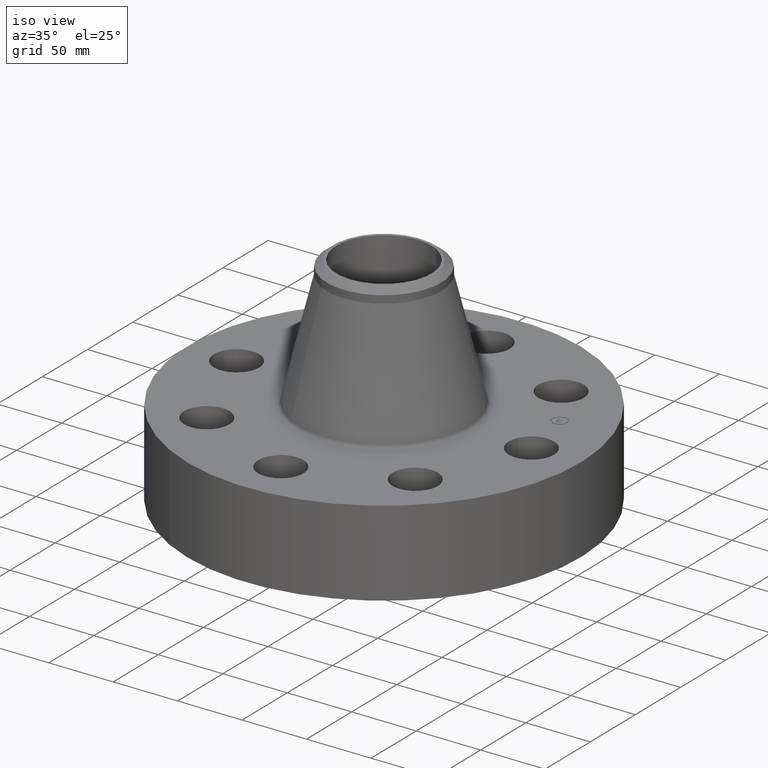
[diagram: clean part render]
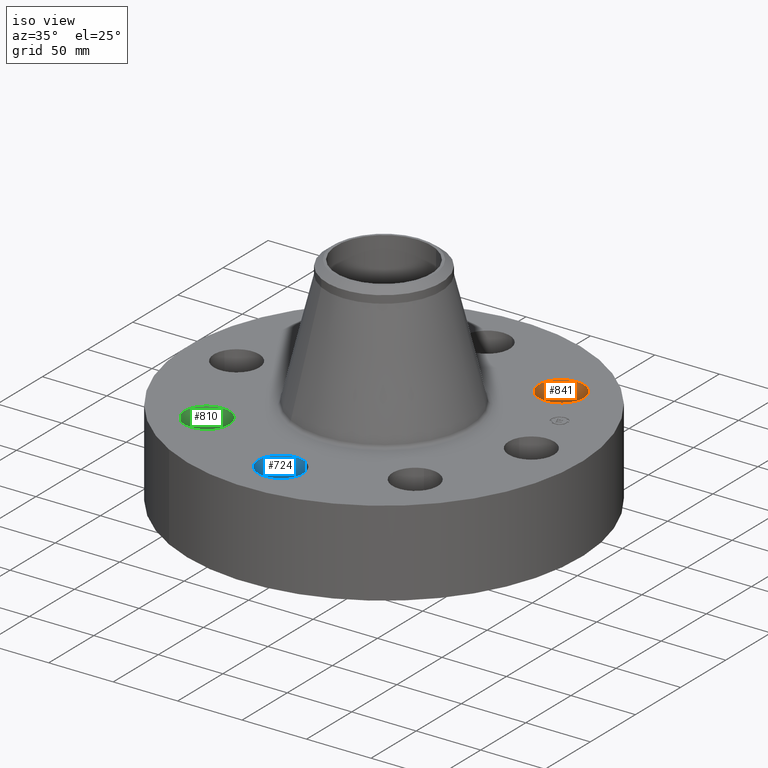
[diagram: same view with three faces highlighted in distinct colors, each labeled with its STEP entity id]
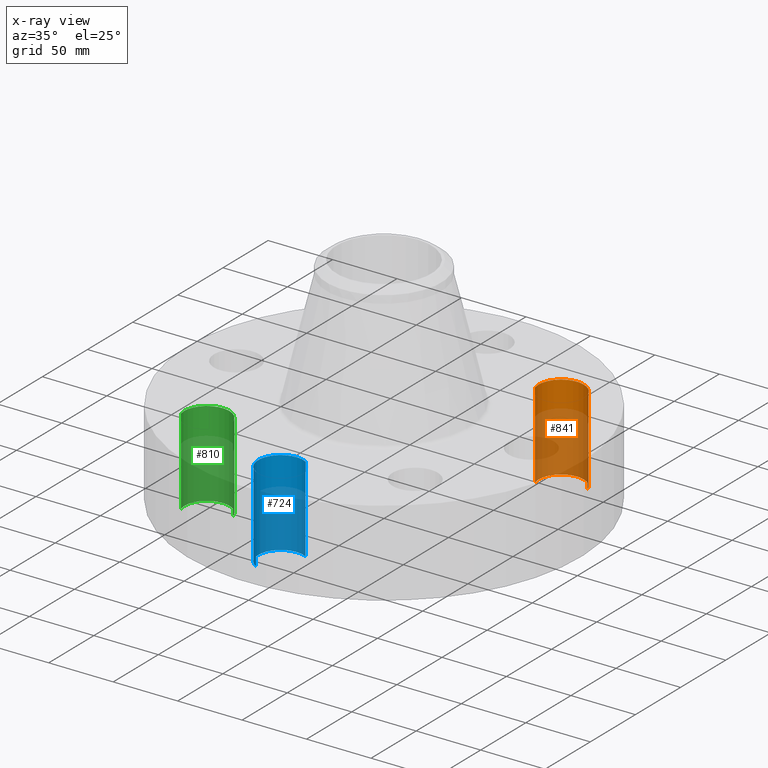
[diagram: x-ray of the same camera — body ghosted, the three highlighted faces saturated]
A machine part, iso view with three faces highlighted in distinct colors.
The next image is the same camera in x-ray (body ghosted, the three faces saturated) — at least one of them is partly hidden behind the body in this view.
Their STEP definitions:

[orange] entity #841 — the highlighted cylindrical surface (edge-blend (fillet) strip) has radius 17.526 mm, axis along (0, 0, -1).
#622=AXIS2_PLACEMENT_3D('Circle Axis2P3D',#620,#621,$) ;
#814=AXIS2_PLACEMENT_3D('Cylinder Axis2P3D',#811,#812,#813) ;
#832=AXIS2_PLACEMENT_3D('Circle Axis2P3D',#830,#831,$) ;
#620=CARTESIAN_POINT('Axis2P3D Location',(3.18198051535,3.18198051535,0.)) ;
#624=CARTESIAN_POINT('Vertex',(2.51989127066,2.98771823886,0.)) ;
#626=CARTESIAN_POINT('Vertex',(3.84406976004,3.37624279184,0.)) ;
#811=CARTESIAN_POINT('Axis2P3D Location',(3.18198051535,3.18198051535,2.61606299214)) ;
#816=CARTESIAN_POINT('Line Origine',(2.51989127066,2.98771823886,1.31000000001)) ;
#820=CARTESIAN_POINT('Vertex',(2.51989127066,2.98771823886,2.62000000001)) ;
#823=CARTESIAN_POINT('Line Origine',(3.84406976004,3.37624279184,1.31000000001)) ;
#827=CARTESIAN_POINT('Vertex',(3.84406976004,3.37624279184,2.62000000001)) ;
#830=CARTESIAN_POINT('Axis2P3D Location',(3.18198051535,3.18198051535,2.62000000001)) ;
#621=DIRECTION('Axis2P3D Direction',(0.,0.,-0.0393700787402)) ;
#812=DIRECTION('Axis2P3D Direction',(0.,0.,-0.0393700787402)) ;
#813=DIRECTION('Axis2P3D XDirection',(0.0377775444876,0.0110842335096,0.)) ;
#817=DIRECTION('Vector Direction',(0.,0.,-0.0393700787402)) ;
#824=DIRECTION('Vector Direction',(0.,0.,-0.0393700787402)) ;
#831=DIRECTION('Axis2P3D Direction',(0.,0.,-0.0393700787402)) ;
#818=VECTOR('Line Direction',#817,0.0393700787402) ;
#825=VECTOR('Line Direction',#824,0.0393700787402) ;
#836=ORIENTED_EDGE('',*,*,#822,.F.) ;
#837=ORIENTED_EDGE('',*,*,#628,.T.) ;
#838=ORIENTED_EDGE('',*,*,#829,.T.) ;
#839=ORIENTED_EDGE('',*,*,#834,.F.) ;
#841=ADVANCED_FACE('PartBody',(#840),#815,.F.) ;
#623=CIRCLE('generated circle',#622,0.690000000003) ;
#833=CIRCLE('generated circle',#832,0.690000000003) ;
#815=CYLINDRICAL_SURFACE('generated cylinder',#814,0.690000000003) ;
#628=EDGE_CURVE('',#625,#627,#623,.T.) ;
#822=EDGE_CURVE('',#625,#821,#819,.F.) ;
#829=EDGE_CURVE('',#627,#828,#826,.F.) ;
#834=EDGE_CURVE('',#821,#828,#833,.T.) ;
#835=EDGE_LOOP('',(#836,#837,#838,#839)) ;
#840=FACE_OUTER_BOUND('',#835,.T.) ;
#819=LINE('Line',#816,#818) ;
#826=LINE('Line',#823,#825) ;
#625=VERTEX_POINT('',#624) ;
#627=VERTEX_POINT('',#626) ;
#821=VERTEX_POINT('',#820) ;
#828=VERTEX_POINT('',#827) ;

[blue] entity #724 — the highlighted cylindrical surface (edge-blend (fillet) strip) has radius 17.526 mm, axis along (0, -0, -1).
#541=AXIS2_PLACEMENT_3D('Circle Axis2P3D',#539,#540,$) ;
#685=AXIS2_PLACEMENT_3D('Cylinder Axis2P3D',#682,#683,#684) ;
#715=AXIS2_PLACEMENT_3D('Circle Axis2P3D',#713,#714,$) ;
#534=CARTESIAN_POINT('Vertex',(0.330803621638,-3.89446803231,0.)) ;
#536=CARTESIAN_POINT('Vertex',(-0.330803621638,-5.10553196772,0.)) ;
#539=CARTESIAN_POINT('Axis2P3D Location',(-4.89547160465E-016,-4.50000000002,0.)) ;
#682=CARTESIAN_POINT('Axis2P3D Location',(-2.83936939293E-016,-4.50000000002,2.61606299214)) ;
#687=CARTESIAN_POINT('Line Origine',(0.330803621638,-3.89446803231,1.31000000001)) ;
#691=CARTESIAN_POINT('Vertex',(0.330803621638,-3.89446803231,2.62000000001)) ;
#694=CARTESIAN_POINT('Line Origine',(-0.330803621638,-5.10553196772,1.31000000001)) ;
#698=CARTESIAN_POINT('Vertex',(-0.330803621638,-5.10553196772,2.62000000001)) ;
#713=CARTESIAN_POINT('Axis2P3D Location',(-2.83936939293E-016,-4.50000000002,2.62000000001)) ;
#540=DIRECTION('Axis2P3D Direction',(0.,0.,-0.0393700787402)) ;
#683=DIRECTION('Axis2P3D Direction',(0.,-0.,-0.0393700787402)) ;
#684=DIRECTION('Axis2P3D XDirection',(-0.0188750212049,-0.0345504945626,0.)) ;
#688=DIRECTION('Vector Direction',(0.,0.,-0.0393700787402)) ;
#695=DIRECTION('Vector Direction',(0.,0.,-0.0393700787402)) ;
#714=DIRECTION('Axis2P3D Direction',(0.,-0.,-0.0393700787402)) ;
#689=VECTOR('Line Direction',#688,0.0393700787402) ;
#696=VECTOR('Line Direction',#695,0.0393700787402) ;
#719=ORIENTED_EDGE('',*,*,#700,.F.) ;
#720=ORIENTED_EDGE('',*,*,#543,.T.) ;
#721=ORIENTED_EDGE('',*,*,#693,.T.) ;
#722=ORIENTED_EDGE('',*,*,#717,.F.) ;
#724=ADVANCED_FACE('PartBody',(#723),#686,.F.) ;
#542=CIRCLE('generated circle',#541,0.690000000003) ;
#716=CIRCLE('generated circle',#715,0.690000000003) ;
#686=CYLINDRICAL_SURFACE('generated cylinder',#685,0.690000000003) ;
#543=EDGE_CURVE('',#537,#535,#542,.T.) ;
#693=EDGE_CURVE('',#535,#692,#690,.F.) ;
#700=EDGE_CURVE('',#537,#699,#697,.F.) ;
#717=EDGE_CURVE('',#699,#692,#716,.T.) ;
#718=EDGE_LOOP('',(#719,#720,#721,#722)) ;
#723=FACE_OUTER_BOUND('',#718,.T.) ;
#690=LINE('Line',#687,#689) ;
#697=LINE('Line',#694,#696) ;
#535=VERTEX_POINT('',#534) ;
#537=VERTEX_POINT('',#536) ;
#692=VERTEX_POINT('',#691) ;
#699=VERTEX_POINT('',#698) ;

[green] entity #810 — the highlighted cylindrical surface (edge-blend (fillet) strip) has radius 17.526 mm, axis along (-0, 0, -1).
#559=AXIS2_PLACEMENT_3D('Circle Axis2P3D',#557,#558,$) ;
#771=AXIS2_PLACEMENT_3D('Cylinder Axis2P3D',#768,#769,#770) ;
#801=AXIS2_PLACEMENT_3D('Circle Axis2P3D',#799,#800,$) ;
#552=CARTESIAN_POINT('Vertex',(-2.51989127066,-2.98771823886,0.)) ;
#554=CARTESIAN_POINT('Vertex',(-3.84406976004,-3.37624279184,0.)) ;
#557=CARTESIAN_POINT('Axis2P3D Location',(-3.18198051535,-3.18198051535,0.)) ;
#768=CARTESIAN_POINT('Axis2P3D Location',(-3.18198051535,-3.18198051535,2.61606299214)) ;
#773=CARTESIAN_POINT('Line Origine',(-2.51989127066,-2.98771823886,1.31000000001)) ;
#777=CARTESIAN_POINT('Vertex',(-2.51989127066,-2.98771823886,2.62000000001)) ;
#780=CARTESIAN_POINT('Line Origine',(-3.84406976004,-3.37624279184,1.31000000001)) ;
#784=CARTESIAN_POINT('Vertex',(-3.84406976004,-3.37624279184,2.62000000001)) ;
#799=CARTESIAN_POINT('Axis2P3D Location',(-3.18198051535,-3.18198051535,2.62000000001)) ;
#558=DIRECTION('Axis2P3D Direction',(0.,0.,-0.0393700787402)) ;
#769=DIRECTION('Axis2P3D Direction',(-0.,0.,-0.0393700787402)) ;
#770=DIRECTION('Axis2P3D XDirection',(-0.0377775444876,-0.0110842335096,0.)) ;
#774=DIRECTION('Vector Direction',(0.,0.,-0.0393700787402)) ;
#781=DIRECTION('Vector Direction',(0.,0.,-0.0393700787402)) ;
#800=DIRECTION('Axis2P3D Direction',(-0.,0.,-0.0393700787402)) ;
#775=VECTOR('Line Direction',#774,0.0393700787402) ;
#782=VECTOR('Line Direction',#781,0.0393700787402) ;
#805=ORIENTED_EDGE('',*,*,#786,.F.) ;
#806=ORIENTED_EDGE('',*,*,#561,.T.) ;
#807=ORIENTED_EDGE('',*,*,#779,.T.) ;
#808=ORIENTED_EDGE('',*,*,#803,.F.) ;
#810=ADVANCED_FACE('PartBody',(#809),#772,.F.) ;
#560=CIRCLE('generated circle',#559,0.690000000003) ;
#802=CIRCLE('generated circle',#801,0.690000000003) ;
#772=CYLINDRICAL_SURFACE('generated cylinder',#771,0.690000000003) ;
#561=EDGE_CURVE('',#555,#553,#560,.T.) ;
#779=EDGE_CURVE('',#553,#778,#776,.F.) ;
#786=EDGE_CURVE('',#555,#785,#783,.F.) ;
#803=EDGE_CURVE('',#785,#778,#802,.T.) ;
#804=EDGE_LOOP('',(#805,#806,#807,#808)) ;
#809=FACE_OUTER_BOUND('',#804,.T.) ;
#776=LINE('Line',#773,#775) ;
#783=LINE('Line',#780,#782) ;
#553=VERTEX_POINT('',#552) ;
#555=VERTEX_POINT('',#554) ;
#778=VERTEX_POINT('',#777) ;
#785=VERTEX_POINT('',#784) ;